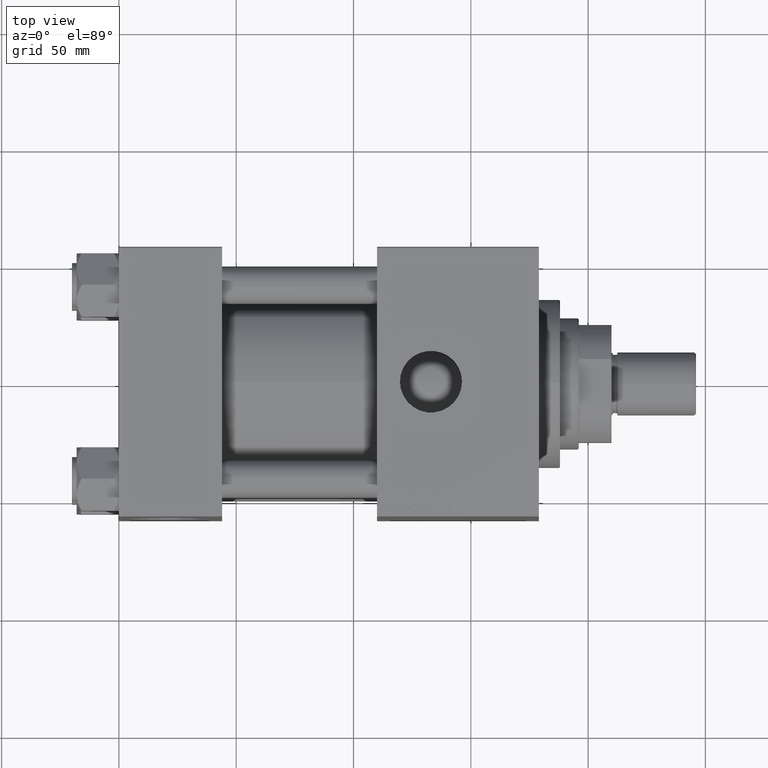
[diagram: clean part render]
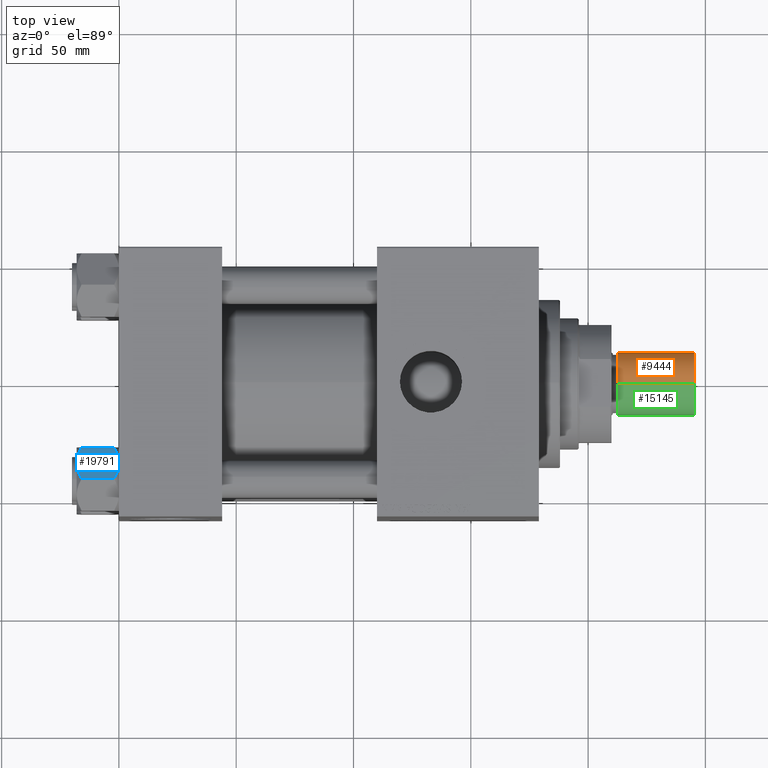
[diagram: same view with three faces highlighted in distinct colors, each labeled with its STEP entity id]
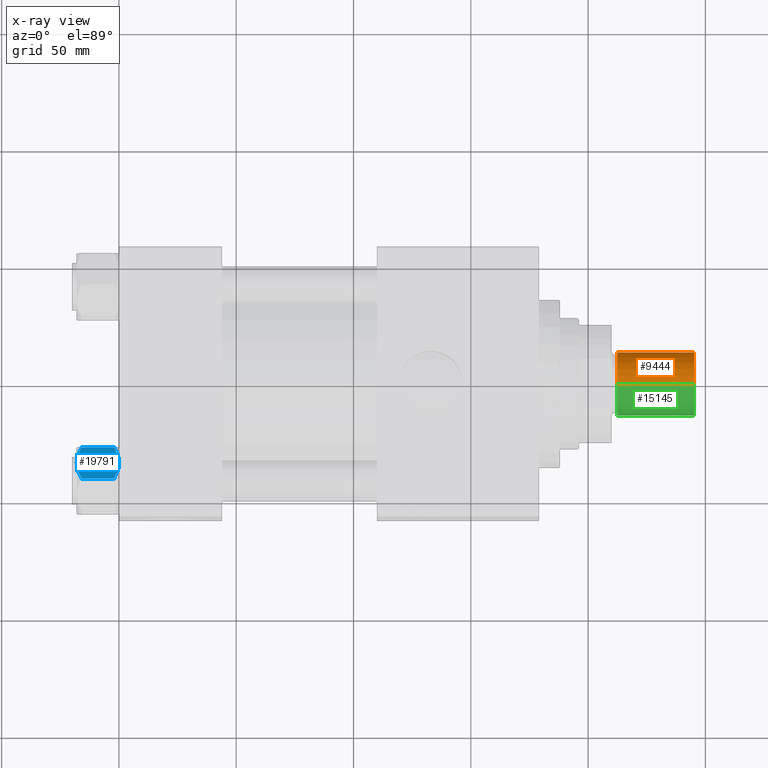
[diagram: x-ray of the same camera — body ghosted, the three highlighted faces saturated]
A machine part, top view with three faces highlighted in distinct colors.
The next image is the same camera in x-ray (body ghosted, the three faces saturated) — at least one of them is partly hidden behind the body in this view.
Their STEP definitions:

[orange] entity #9444 — the highlighted cylindrical surface (edge-blend (fillet) strip) has radius 13.5 mm, axis along (1, -0, -0).
#913 = VERTEX_POINT ( 'NONE', #30966 ) ;
#1648 = CARTESIAN_POINT ( 'NONE',  ( 13.50000000000000000, 1.653273178848926867E-15, 33.50000000000000000 ) ) ;
#2819 = CARTESIAN_POINT ( 'NONE',  ( -13.50000000000000000, 0.000000000000000000, 0.7999999999999951594 ) ) ;
#4348 = ORIENTED_EDGE ( 'NONE', *, *, #45331, .T. ) ;
#5737 = ORIENTED_EDGE ( 'NONE', *, *, #12585, .F. ) ;
#5820 = FACE_OUTER_BOUND ( 'NONE', #47393, .T. ) ;
#6001 = VERTEX_POINT ( 'NONE', #50335 ) ;
#6965 = EDGE_CURVE ( 'NONE', #27644, #913, #15265, .T. ) ;
#8583 = ORIENTED_EDGE ( 'NONE', *, *, #6965, .F. ) ;
#9444 = ADVANCED_FACE ( 'NONE', ( #5820 ), #24783, .T. ) ;
#9456 = CARTESIAN_POINT ( 'NONE',  ( 0.000000000000000000, 0.000000000000000000, 33.50000000000000000 ) ) ;
#9823 = DIRECTION ( 'NONE',  ( -0.000000000000000000, -0.000000000000000000, 1.000000000000000000 ) ) ;
#11259 = CARTESIAN_POINT ( 'NONE',  ( 0.000000000000000000, 0.000000000000000000, 33.50000000000000000 ) ) ;
#12585 = EDGE_CURVE ( 'NONE', #913, #41581, #21258, .T. ) ;
#15265 = CIRCLE ( 'NONE', #39276, 13.50000000000000000 ) ;
#15331 = AXIS2_PLACEMENT_3D ( 'NONE', #9456, #25029, #25282 ) ;
#18608 = AXIS2_PLACEMENT_3D ( 'NONE', #48736, #9823, #37573 ) ;
#21258 = LINE ( 'NONE', #28539, #35366 ) ;
#22127 = DIRECTION ( 'NONE',  ( -0.000000000000000000, -0.000000000000000000, -1.000000000000000000 ) ) ;
#23892 = DIRECTION ( 'NONE',  ( 0.000000000000000000, 0.000000000000000000, 1.000000000000000000 ) ) ;
#24783 = CYLINDRICAL_SURFACE ( 'NONE', #15331, 13.50000000000000000 ) ;
#25029 = DIRECTION ( 'NONE',  ( -0.000000000000000000, -0.000000000000000000, -1.000000000000000000 ) ) ;
#25282 = DIRECTION ( 'NONE',  ( -1.000000000000000000, 0.000000000000000000, 0.000000000000000000 ) ) ;
#27644 = VERTEX_POINT ( 'NONE', #27850 ) ;
#27850 = CARTESIAN_POINT ( 'NONE',  ( 13.50000000000000000, 1.653273178848926867E-15, 33.50000000000000000 ) ) ;
#28539 = CARTESIAN_POINT ( 'NONE',  ( -13.50000000000000000, 0.000000000000000000, 33.50000000000000000 ) ) ;
#30966 = CARTESIAN_POINT ( 'NONE',  ( -13.50000000000000000, 0.000000000000000000, 33.50000000000000000 ) ) ;
#32856 = VECTOR ( 'NONE', #22127, 1000.000000000000000 ) ;
#33993 = ORIENTED_EDGE ( 'NONE', *, *, #39619, .T. ) ;
#35366 = VECTOR ( 'NONE', #36058, 1000.000000000000000 ) ;
#36058 = DIRECTION ( 'NONE',  ( -0.000000000000000000, -0.000000000000000000, -1.000000000000000000 ) ) ;
#37573 = DIRECTION ( 'NONE',  ( 1.000000000000000000, 0.000000000000000000, 0.000000000000000000 ) ) ;
#39276 = AXIS2_PLACEMENT_3D ( 'NONE', #11259, #23892, #39696 ) ;
#39619 = EDGE_CURVE ( 'NONE', #6001, #41581, #42628, .T. ) ;
#39696 = DIRECTION ( 'NONE',  ( 1.000000000000000000, 0.000000000000000000, 0.000000000000000000 ) ) ;
#41581 = VERTEX_POINT ( 'NONE', #2819 ) ;
#42628 = CIRCLE ( 'NONE', #18608, 13.50000000000000000 ) ;
#45331 = EDGE_CURVE ( 'NONE', #27644, #6001, #48841, .T. ) ;
#47393 = EDGE_LOOP ( 'NONE', ( #8583, #4348, #33993, #5737 ) ) ;
#48736 = CARTESIAN_POINT ( 'NONE',  ( 0.000000000000000000, 0.000000000000000000, 0.7999999999999951594 ) ) ;
#48841 = LINE ( 'NONE', #1648, #32856 ) ;
#50335 = CARTESIAN_POINT ( 'NONE',  ( 13.50000000000000000, 1.653273178848926867E-15, 0.7999999999999951594 ) ) ;

[blue] entity #19791 — the highlighted planar face has unit normal (-0, -0.5, -0.866).
#60 = CARTESIAN_POINT ( 'NONE',  ( -14.92760668674625002, -1.199260397376427090, -1.411989271640064825 ) ) ;
#157 = EDGE_CURVE ( 'NONE', #33941, #41590, #29104, .T. ) ;
#191 = DIRECTION ( 'NONE',  ( -0.4999999999999994449, 0.8660254037844390407, 0.000000000000000000 ) ) ;
#439 = CARTESIAN_POINT ( 'NONE',  ( -11.71499999999999986, -6.763658403556454424, -18.00000000000000000 ) ) ;
#941 = CARTESIAN_POINT ( 'NONE',  ( -13.02784502466562699, -4.489744118371577386, -17.80281335400754017 ) ) ;
#2189 = PLANE ( 'NONE',  #31334 ) ;
#2279 = LINE ( 'NONE', #13439, #42788 ) ;
#2674 = VERTEX_POINT ( 'NONE', #47897 ) ;
#2802 = CARTESIAN_POINT ( 'NONE',  ( -11.71499999999999986, -6.763658403556454424, -18.00000000000000000 ) ) ;
#3401 = EDGE_CURVE ( 'NONE', #15380, #41590, #11985, .T. ) ;
#3883 = VERTEX_POINT ( 'NONE', #11096 ) ;
#5076 = CARTESIAN_POINT ( 'NONE',  ( -15.52647173767731914, -0.1619957022864979002, -16.00000000000000000 ) ) ;
#5204 = CARTESIAN_POINT ( 'NONE',  ( -10.38662926516872709, -9.064464007571841009, -17.75691532989870325 ) ) ;
#5801 = CARTESIAN_POINT ( 'NONE',  ( -15.52647173767732980, -0.1619957022864788043, -2.000000000000000000 ) ) ;
#8975 = CARTESIAN_POINT ( 'NONE',  ( -7.809999999999999609, -13.52731680711293727, -16.00000000000000000 ) ) ;
#9002 = B_SPLINE_CURVE_WITH_KNOTS ( 'NONE', 3,
 ( #16389, #60, #32450, #20784, #11976, #47760, #20027, #15875 ),
 .UNSPECIFIED., .F., .F.,
 ( 4, 2, 2, 4 ),
 ( 4.472842641982724416E-07, 0.003945636373369324802, 0.005918230917921887824, 0.007890825462474451713 ),
 .UNSPECIFIED. ) ;
#9164 = CARTESIAN_POINT ( 'NONE',  ( -7.809999999999999609, -13.52731680711293727, -16.00000000000000000 ) ) ;
#9283 = VECTOR ( 'NONE', #35073, 1000.000000000000000 ) ;
#9350 = CARTESIAN_POINT ( 'NONE',  ( -8.502393313253762130, -12.32805640973646710, -16.58801072835992585 ) ) ;
#9380 = CARTESIAN_POINT ( 'NONE',  ( -7.809999999999999609, -13.52731680711293727, -1.999999999999998224 ) ) ;
#9418 = B_SPLINE_CURVE_WITH_KNOTS ( 'NONE', 3,
 ( #39085, #38567, #34945, #42451, #14723, #34684, #10569, #14983 ),
 .UNSPECIFIED., .F., .F.,
 ( 4, 2, 2, 4 ),
 ( 0.007890825462474451713, 0.01181022244528557794, 0.01376992093669113758, 0.01572961942809669722 ),
 .UNSPECIFIED. ) ;
#9862 = EDGE_CURVE ( 'NONE', #39352, #30063, #33001, .T. ) ;
#9906 = CARTESIAN_POINT ( 'NONE',  ( -7.903528262322684128, -13.36532110482641400, -16.00000000000000000 ) ) ;
#9955 = VERTEX_POINT ( 'NONE', #9906 ) ;
#10569 = CARTESIAN_POINT ( 'NONE',  ( -8.202637790192643052, -12.84724820552771085, -1.706311779141444829 ) ) ;
#11096 = CARTESIAN_POINT ( 'NONE',  ( -11.71500000000000874, -6.763658403556459753, 0.000000000000000000 ) ) ;
#11976 = CARTESIAN_POINT ( 'NONE',  ( -13.04337073483128329, -4.462852799541069615, -0.2430846701012900901 ) ) ;
#11985 = LINE ( 'NONE', #15883, #9283 ) ;
#12994 = CARTESIAN_POINT ( 'NONE',  ( -7.903528262322684128, -13.36532110482641400, -16.00000000000000000 ) ) ;
#13251 = CARTESIAN_POINT ( 'NONE',  ( -11.04378428799595291, -7.926238119585994113, -17.94910618364698252 ) ) ;
#13439 = CARTESIAN_POINT ( 'NONE',  ( -15.61999999999999567, 8.023367828467702033E-15, -18.00000000000000000 ) ) ;
#13541 = DIRECTION ( 'NONE',  ( 0.4999999999999994449, -0.8660254037844390407, 0.000000000000000000 ) ) ;
#14347 = ORIENTED_EDGE ( 'NONE', *, *, #24931, .F. ) ;
#14723 = CARTESIAN_POINT ( 'NONE',  ( -9.124083218049237942, -11.25125790807803838, -0.9473872146228101698 ) ) ;
#14810 = CARTESIAN_POINT ( 'NONE',  ( -15.61999999999999567, 8.023367828467702033E-15, -1.999999999999998224 ) ) ;
#14983 = CARTESIAN_POINT ( 'NONE',  ( -7.903528262322674358, -13.36532110482643354, -2.000000000000000000 ) ) ;
#15365 = VECTOR ( 'NONE', #20587, 999.9999999999998863 ) ;
#15380 = VERTEX_POINT ( 'NONE', #21778 ) ;
#15382 = ORIENTED_EDGE ( 'NONE', *, *, #9862, .F. ) ;
#15875 = CARTESIAN_POINT ( 'NONE',  ( -11.71500000000000874, -6.763658403556459753, 0.000000000000000000 ) ) ;
#15883 = CARTESIAN_POINT ( 'NONE',  ( -7.809999999999999609, -13.52731680711293727, -18.00000000000000000 ) ) ;
#16389 = CARTESIAN_POINT ( 'NONE',  ( -15.52647173767732980, -0.1619957022864788043, -2.000000000000000000 ) ) ;
#16730 = EDGE_CURVE ( 'NONE', #40550, #39352, #2279, .T. ) ;
#17489 = DIRECTION ( 'NONE',  ( 0.8660254037844390407, 0.4999999999999994449, 0.000000000000000000 ) ) ;
#19369 = B_SPLINE_CURVE_WITH_KNOTS ( 'NONE', 3,
 ( #12994, #9350, #40721, #24924, #5204, #13251, #29574, #25174 ),
 .UNSPECIFIED., .F., .F.,
 ( 4, 2, 2, 4 ),
 ( 4.472842641823326580E-07, 0.003945636373369299649, 0.005918230917921855731, 0.007890825462474411814 ),
 .UNSPECIFIED. ) ;
#19460 = B_SPLINE_CURVE_WITH_KNOTS ( 'NONE', 3,
 ( #439, #48640, #941, #48391, #36466, #32820, #20401, #5076 ),
 .UNSPECIFIED., .F., .F.,
 ( 4, 2, 2, 4 ),
 ( 0.007890825462474411814, 0.01181022244528552416, 0.01376992093669107860, 0.01572961942809663477 ),
 .UNSPECIFIED. ) ;
#19791 = ADVANCED_FACE ( 'NONE', ( #37712 ), #2189, .F. ) ;
#20027 = CARTESIAN_POINT ( 'NONE',  ( -12.04818928091285635, -6.186557640478051567, 9.103910117089220044E-15 ) ) ;
#20393 = CARTESIAN_POINT ( 'NONE',  ( -7.903528262322674358, -13.36532110482643354, -2.000000000000000000 ) ) ;
#20401 = CARTESIAN_POINT ( 'NONE',  ( -15.22736220980735489, -0.6800686015852174249, -16.29368822085854873 ) ) ;
#20587 = DIRECTION ( 'NONE',  ( 0.4999999999999994449, -0.8660254037844390407, 0.000000000000000000 ) ) ;
#20784 = CARTESIAN_POINT ( 'NONE',  ( -13.36540581434588226, -3.905071680002305534, -0.3836066851120543686 ) ) ;
#21519 = EDGE_LOOP ( 'NONE', ( #14347, #47184, #50382, #22786, #45713, #15382, #49978, #25310, #41924, #37239 ) ) ;
#21778 = CARTESIAN_POINT ( 'NONE',  ( -7.809999999999999609, -13.52731680711293727, -16.00000000000000000 ) ) ;
#22786 = ORIENTED_EDGE ( 'NONE', *, *, #37037, .F. ) ;
#24924 = CARTESIAN_POINT ( 'NONE',  ( -10.06459418565413166, -9.622245127110597096, -17.61639331488793303 ) ) ;
#24931 = EDGE_CURVE ( 'NONE', #15380, #9955, #44241, .T. ) ;
#25174 = CARTESIAN_POINT ( 'NONE',  ( -11.71499999999999986, -6.763658403556454424, -18.00000000000000000 ) ) ;
#25310 = ORIENTED_EDGE ( 'NONE', *, *, #45275, .F. ) ;
#27059 = VECTOR ( 'NONE', #37175, 999.9999999999998863 ) ;
#29104 = LINE ( 'NONE', #9380, #30740 ) ;
#29574 = CARTESIAN_POINT ( 'NONE',  ( -11.38181071908714515, -7.340759166634855504, -17.99999999999998934 ) ) ;
#30063 = VERTEX_POINT ( 'NONE', #5801 ) ;
#30740 = VECTOR ( 'NONE', #13541, 999.9999999999998863 ) ;
#31334 = AXIS2_PLACEMENT_3D ( 'NONE', #49635, #17489, #45478 ) ;
#32450 = CARTESIAN_POINT ( 'NONE',  ( -14.31545111198821552, -2.259544954993873311, -0.9142282604026915616 ) ) ;
#32820 = CARTESIAN_POINT ( 'NONE',  ( -14.92394044919338292, -1.205610507090625561, -16.56553707812498999 ) ) ;
#33001 = LINE ( 'NONE', #45167, #15365 ) ;
#33788 = LINE ( 'NONE', #9164, #27059 ) ;
#33941 = VERTEX_POINT ( 'NONE', #20393 ) ;
#34650 = EDGE_CURVE ( 'NONE', #47061, #2674, #19460, .T. ) ;
#34684 = CARTESIAN_POINT ( 'NONE',  ( -8.506059550806618574, -12.32170630002230816, -1.434462921875002461 ) ) ;
#34945 = CARTESIAN_POINT ( 'NONE',  ( -10.40215497533437805, -9.037572688741340343, -0.1971866459924474513 ) ) ;
#35073 = DIRECTION ( 'NONE',  ( -0.000000000000000000, -0.000000000000000000, 1.000000000000000000 ) ) ;
#36084 = EDGE_CURVE ( 'NONE', #9955, #47061, #19369, .T. ) ;
#36466 = CARTESIAN_POINT ( 'NONE',  ( -14.30591678195075467, -2.276058899034888672, -17.05261278537718539 ) ) ;
#37037 = EDGE_CURVE ( 'NONE', #3883, #33941, #9418, .T. ) ;
#37175 = DIRECTION ( 'NONE',  ( -0.4999999999999994449, 0.8660254037844390407, 0.000000000000000000 ) ) ;
#37239 = ORIENTED_EDGE ( 'NONE', *, *, #36084, .F. ) ;
#37712 = FACE_OUTER_BOUND ( 'NONE', #21519, .T. ) ;
#37818 = CARTESIAN_POINT ( 'NONE',  ( -7.809999999999999609, -13.52731680711293727, -1.999999999999998224 ) ) ;
#38567 = CARTESIAN_POINT ( 'NONE',  ( -11.05297796109637787, -7.910314210667872103, 9.086969458144130882E-15 ) ) ;
#39085 = CARTESIAN_POINT ( 'NONE',  ( -11.71500000000000874, -6.763658403556459753, 0.000000000000000000 ) ) ;
#39352 = VERTEX_POINT ( 'NONE', #14810 ) ;
#39889 = CARTESIAN_POINT ( 'NONE',  ( -15.61999999999999567, 8.023367828467702033E-15, -16.00000000000000000 ) ) ;
#40550 = VERTEX_POINT ( 'NONE', #39889 ) ;
#40721 = CARTESIAN_POINT ( 'NONE',  ( -9.114548888011793082, -11.26777185211902399, -17.08577173959729834 ) ) ;
#41590 = VERTEX_POINT ( 'NONE', #37818 ) ;
#41673 = DIRECTION ( 'NONE',  ( -0.000000000000000000, -0.000000000000000000, 1.000000000000000000 ) ) ;
#41924 = ORIENTED_EDGE ( 'NONE', *, *, #34650, .F. ) ;
#42451 = CARTESIAN_POINT ( 'NONE',  ( -9.439480280627259745, -10.70497417113492311, -0.7317196846281081024 ) ) ;
#42788 = VECTOR ( 'NONE', #41673, 1000.000000000000000 ) ;
#42970 = EDGE_CURVE ( 'NONE', #30063, #3883, #9002, .T. ) ;
#44241 = LINE ( 'NONE', #8975, #50525 ) ;
#45167 = CARTESIAN_POINT ( 'NONE',  ( -7.809999999999999609, -13.52731680711293727, -1.999999999999998224 ) ) ;
#45275 = EDGE_CURVE ( 'NONE', #2674, #40550, #33788, .T. ) ;
#45478 = DIRECTION ( 'NONE',  ( -0.4999999999999993894, 0.8660254037844389297, 0.000000000000000000 ) ) ;
#45713 = ORIENTED_EDGE ( 'NONE', *, *, #42970, .F. ) ;
#47061 = VERTEX_POINT ( 'NONE', #2802 ) ;
#47184 = ORIENTED_EDGE ( 'NONE', *, *, #3401, .T. ) ;
#47760 = CARTESIAN_POINT ( 'NONE',  ( -12.38621571200405391, -5.601078687526916511, -0.05089381635300645190 ) ) ;
#47897 = CARTESIAN_POINT ( 'NONE',  ( -15.52647173767731914, -0.1619957022864979002, -16.00000000000000000 ) ) ;
#48391 = CARTESIAN_POINT ( 'NONE',  ( -13.99051971937273464, -2.822342635978000391, -17.26828031537188224 ) ) ;
#48640 = CARTESIAN_POINT ( 'NONE',  ( -12.37702203890362362, -5.617002596445043849, -17.99999999999999645 ) ) ;
#49635 = CARTESIAN_POINT ( 'NONE',  ( -7.809999999999999609, -13.52731680711293727, -18.00000000000000000 ) ) ;
#49978 = ORIENTED_EDGE ( 'NONE', *, *, #16730, .F. ) ;
#50382 = ORIENTED_EDGE ( 'NONE', *, *, #157, .F. ) ;
#50525 = VECTOR ( 'NONE', #191, 999.9999999999998863 ) ;

[green] entity #15145 — the highlighted cylindrical surface (edge-blend (fillet) strip) has radius 13.5 mm, axis along (1, -0, -0).
#913 = VERTEX_POINT ( 'NONE', #30966 ) ;
#1648 = CARTESIAN_POINT ( 'NONE',  ( 13.50000000000000000, 1.653273178848926867E-15, 33.50000000000000000 ) ) ;
#2819 = CARTESIAN_POINT ( 'NONE',  ( -13.50000000000000000, 0.000000000000000000, 0.7999999999999951594 ) ) ;
#3168 = CYLINDRICAL_SURFACE ( 'NONE', #6324, 13.50000000000000000 ) ;
#5510 = AXIS2_PLACEMENT_3D ( 'NONE', #49243, #26426, #41966 ) ;
#5732 = ORIENTED_EDGE ( 'NONE', *, *, #12585, .T. ) ;
#6001 = VERTEX_POINT ( 'NONE', #50335 ) ;
#6324 = AXIS2_PLACEMENT_3D ( 'NONE', #47225, #14830, #11704 ) ;
#11068 = EDGE_CURVE ( 'NONE', #41581, #6001, #43034, .T. ) ;
#11704 = DIRECTION ( 'NONE',  ( -1.000000000000000000, 0.000000000000000000, 0.000000000000000000 ) ) ;
#12255 = ORIENTED_EDGE ( 'NONE', *, *, #12624, .F. ) ;
#12585 = EDGE_CURVE ( 'NONE', #913, #41581, #21258, .T. ) ;
#12624 = EDGE_CURVE ( 'NONE', #913, #27644, #27939, .T. ) ;
#14830 = DIRECTION ( 'NONE',  ( -0.000000000000000000, -0.000000000000000000, -1.000000000000000000 ) ) ;
#15145 = ADVANCED_FACE ( 'NONE', ( #50086 ), #3168, .T. ) ;
#21258 = LINE ( 'NONE', #28539, #35366 ) ;
#22127 = DIRECTION ( 'NONE',  ( -0.000000000000000000, -0.000000000000000000, -1.000000000000000000 ) ) ;
#23148 = DIRECTION ( 'NONE',  ( 1.000000000000000000, 0.000000000000000000, 0.000000000000000000 ) ) ;
#23536 = EDGE_LOOP ( 'NONE', ( #50371, #12255, #5732, #45964 ) ) ;
#26426 = DIRECTION ( 'NONE',  ( 0.000000000000000000, 0.000000000000000000, 1.000000000000000000 ) ) ;
#27034 = DIRECTION ( 'NONE',  ( -0.000000000000000000, -0.000000000000000000, 1.000000000000000000 ) ) ;
#27644 = VERTEX_POINT ( 'NONE', #27850 ) ;
#27799 = CARTESIAN_POINT ( 'NONE',  ( 0.000000000000000000, 0.000000000000000000, 0.7999999999999951594 ) ) ;
#27850 = CARTESIAN_POINT ( 'NONE',  ( 13.50000000000000000, 1.653273178848926867E-15, 33.50000000000000000 ) ) ;
#27939 = CIRCLE ( 'NONE', #5510, 13.50000000000000000 ) ;
#28539 = CARTESIAN_POINT ( 'NONE',  ( -13.50000000000000000, 0.000000000000000000, 33.50000000000000000 ) ) ;
#30966 = CARTESIAN_POINT ( 'NONE',  ( -13.50000000000000000, 0.000000000000000000, 33.50000000000000000 ) ) ;
#32856 = VECTOR ( 'NONE', #22127, 1000.000000000000000 ) ;
#35366 = VECTOR ( 'NONE', #36058, 1000.000000000000000 ) ;
#36058 = DIRECTION ( 'NONE',  ( -0.000000000000000000, -0.000000000000000000, -1.000000000000000000 ) ) ;
#41581 = VERTEX_POINT ( 'NONE', #2819 ) ;
#41966 = DIRECTION ( 'NONE',  ( 1.000000000000000000, 0.000000000000000000, 0.000000000000000000 ) ) ;
#43034 = CIRCLE ( 'NONE', #43850, 13.50000000000000000 ) ;
#43850 = AXIS2_PLACEMENT_3D ( 'NONE', #27799, #27034, #23148 ) ;
#45331 = EDGE_CURVE ( 'NONE', #27644, #6001, #48841, .T. ) ;
#45964 = ORIENTED_EDGE ( 'NONE', *, *, #11068, .T. ) ;
#47225 = CARTESIAN_POINT ( 'NONE',  ( 0.000000000000000000, 0.000000000000000000, 33.50000000000000000 ) ) ;
#48841 = LINE ( 'NONE', #1648, #32856 ) ;
#49243 = CARTESIAN_POINT ( 'NONE',  ( 0.000000000000000000, 0.000000000000000000, 33.50000000000000000 ) ) ;
#50086 = FACE_OUTER_BOUND ( 'NONE', #23536, .T. ) ;
#50335 = CARTESIAN_POINT ( 'NONE',  ( 13.50000000000000000, 1.653273178848926867E-15, 0.7999999999999951594 ) ) ;
#50371 = ORIENTED_EDGE ( 'NONE', *, *, #45331, .F. ) ;